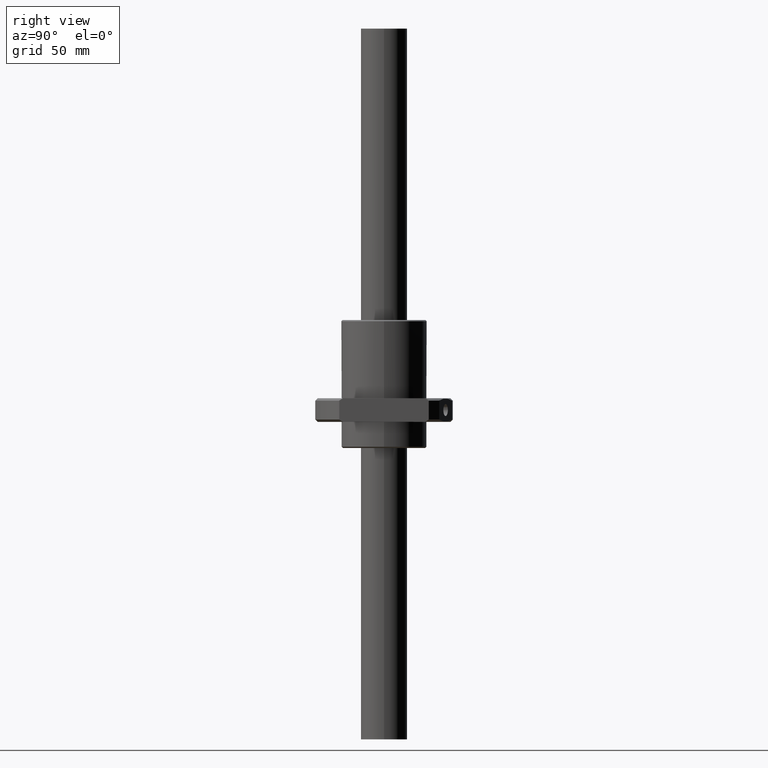
[diagram: clean part render]
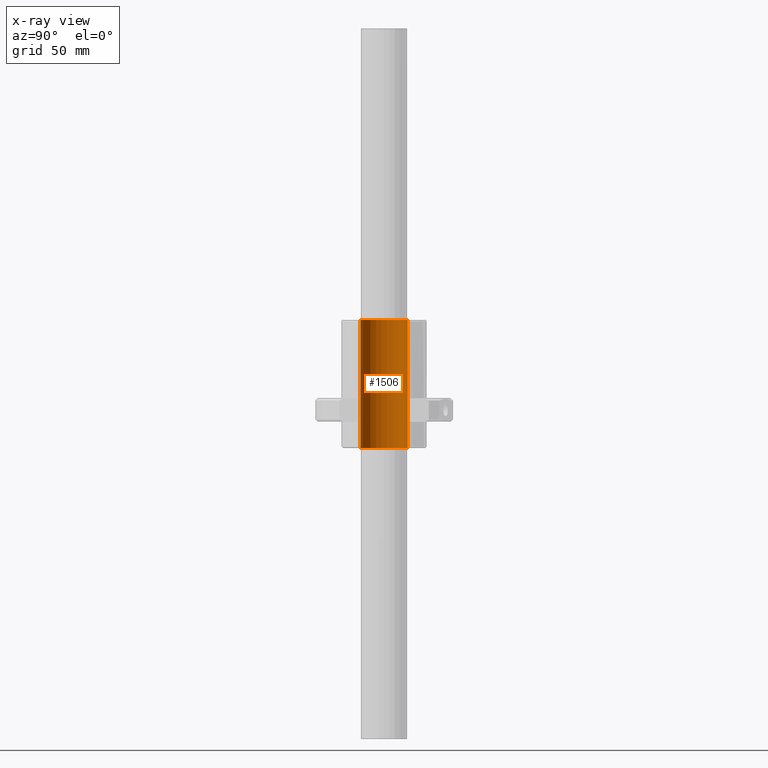
[diagram: x-ray — body ghosted, one internal face saturated and labeled with its STEP entity id]
A machine part, right view, then the same camera in x-ray: the body is ghosted and one INTERNAL B-rep face — a face not visible from any outside direction — is saturated and labeled: STEP entity #1506.
In plain terms, the highlighted cylindrical surface (edge-blend (fillet) strip) has radius 10 mm, axis along (0, -0, -1).
Its self-contained STEP definition (entity closure, byte-faithful):
#7 = DIRECTION ( 'NONE',  ( 0.0000000000000000000, -3.469446951953614700E-016, 1.000000000000000000 ) ) ;
#199 = EDGE_CURVE ( 'NONE', #291, #259, #883, .T. ) ;
#214 = CARTESIAN_POINT ( 'NONE',  ( 0.0000000000000000000, 0.0000000000000000000, -54.00000000000000000 ) ) ;
#216 = CYLINDRICAL_SURFACE ( 'NONE', #275, 10.00000000000000000 ) ;
#237 = CIRCLE ( 'NONE', #1400, 10.00000000000000000 ) ;
#259 = VERTEX_POINT ( 'NONE', #1360 ) ;
#275 = AXIS2_PLACEMENT_3D ( 'NONE', #214, #7, #1704 ) ;
#291 = VERTEX_POINT ( 'NONE', #1719 ) ;
#317 = FACE_OUTER_BOUND ( 'NONE', #1641, .T. ) ;
#423 = DIRECTION ( 'NONE',  ( 0.0000000000000000000, -3.469446951953614700E-016, 1.000000000000000000 ) ) ;
#535 = ORIENTED_EDGE ( 'NONE', *, *, #1770, .T. ) ;
#603 = CARTESIAN_POINT ( 'NONE',  ( 1.224646799147353300E-015, 10.00000000000000000, -53.99999999999999300 ) ) ;
#741 = DIRECTION ( 'NONE',  ( 0.0000000000000000000, -1.000000000000000000, -6.938893903907228400E-016 ) ) ;
#756 = VERTEX_POINT ( 'NONE', #1851 ) ;
#762 = ORIENTED_EDGE ( 'NONE', *, *, #1093, .F. ) ;
#804 = LINE ( 'NONE', #603, #1386 ) ;
#883 = LINE ( 'NONE', #1076, #965 ) ;
#943 = DIRECTION ( 'NONE',  ( -0.0000000000000000000, 3.469446951953614700E-016, -1.000000000000000000 ) ) ;
#965 = VECTOR ( 'NONE', #1278, 1000.000000000000000 ) ;
#1051 = EDGE_CURVE ( 'NONE', #1471, #291, #237, .T. ) ;
#1076 = CARTESIAN_POINT ( 'NONE',  ( 0.0000000000000000000, -10.00000000000000000, -54.00000000000000700 ) ) ;
#1093 = EDGE_CURVE ( 'NONE', #1471, #756, #804, .T. ) ;
#1132 = CIRCLE ( 'NONE', #1702, 10.00000000000000000 ) ;
#1146 = CARTESIAN_POINT ( 'NONE',  ( 0.0000000000000000000, -4.937685433427040800E-040, -54.00000000000000000 ) ) ;
#1278 = DIRECTION ( 'NONE',  ( 0.0000000000000000000, -3.469446951953614700E-016, 1.000000000000000000 ) ) ;
#1321 = DIRECTION ( 'NONE',  ( 0.0000000000000000000, -1.000000000000000000, -3.469446951953615200E-016 ) ) ;
#1360 = CARTESIAN_POINT ( 'NONE',  ( 0.0000000000000000000, -10.00000000000002000, -3.469446951953615000E-015 ) ) ;
#1386 = VECTOR ( 'NONE', #423, 1000.000000000000000 ) ;
#1400 = AXIS2_PLACEMENT_3D ( 'NONE', #1146, #943, #741 ) ;
#1428 = ORIENTED_EDGE ( 'NONE', *, *, #199, .T. ) ;
#1436 = CARTESIAN_POINT ( 'NONE',  ( 1.224646799147354400E-015, 10.00000000000000000, -54.00000000000000000 ) ) ;
#1471 = VERTEX_POINT ( 'NONE', #1436 ) ;
#1502 = DIRECTION ( 'NONE',  ( 0.0000000000000000000, -3.469446951953614700E-016, 1.000000000000000000 ) ) ;
#1506 = ADVANCED_FACE ( 'NONE', ( #317 ), #216, .F. ) ;
#1641 = EDGE_LOOP ( 'NONE', ( #762, #1743, #1428, #535 ) ) ;
#1685 = CARTESIAN_POINT ( 'NONE',  ( 0.0000000000000000000, -1.873501354054951700E-014, 0.0000000000000000000 ) ) ;
#1702 = AXIS2_PLACEMENT_3D ( 'NONE', #1685, #1502, #1321 ) ;
#1704 = DIRECTION ( 'NONE',  ( 0.0000000000000000000, -1.000000000000000000, -6.938893903907228400E-016 ) ) ;
#1719 = CARTESIAN_POINT ( 'NONE',  ( 0.0000000000000000000, -10.00000000000000000, -54.00000000000000700 ) ) ;
#1743 = ORIENTED_EDGE ( 'NONE', *, *, #1051, .T. ) ;
#1770 = EDGE_CURVE ( 'NONE', #259, #756, #1132, .T. ) ;
#1851 = CARTESIAN_POINT ( 'NONE',  ( 1.224646799147353300E-015, 9.999999999999980500, 3.469446951953615000E-015 ) ) ;